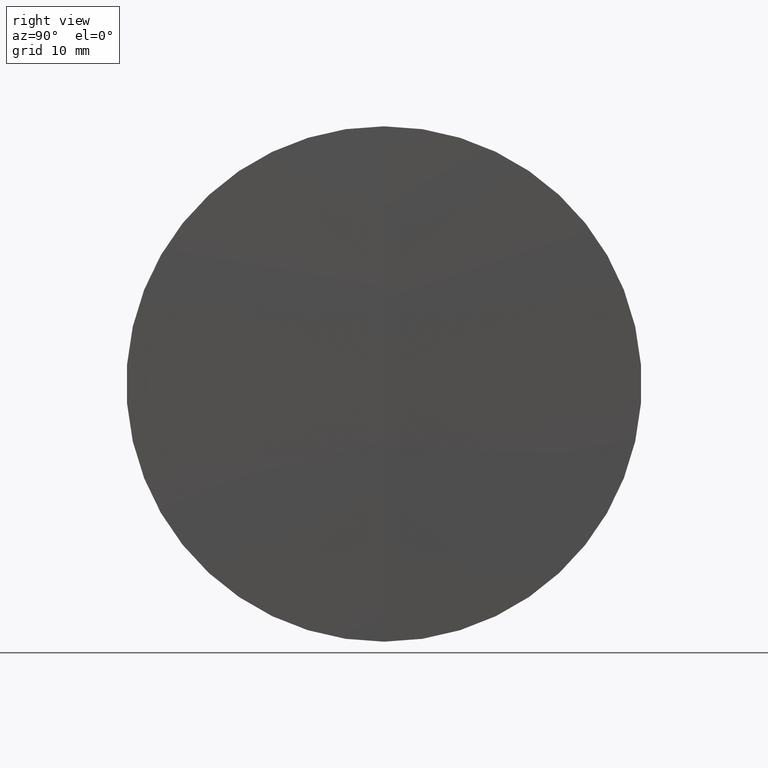
[diagram: clean part render]
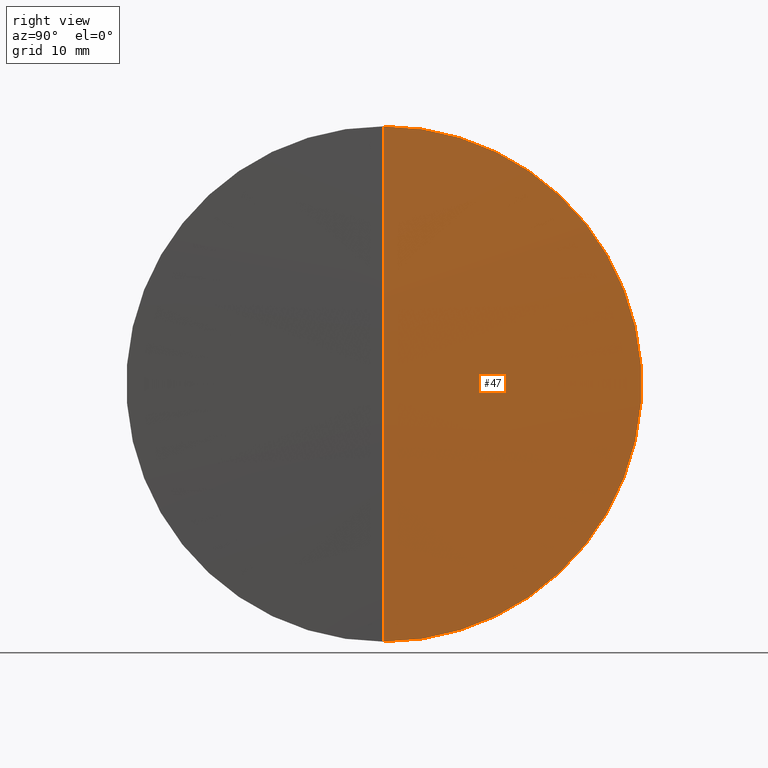
[diagram: same view with one face highlighted and labeled with its STEP entity id]
A machine part, right view. The second image highlights one B-rep face of the part: STEP entity #47.
In plain terms, the highlighted spherical surface has radius 1132.4 mm.
Its self-contained STEP definition (entity closure, byte-faithful):
#1 = DIRECTION ( 'NONE',  ( 0.0000000000000000000, 0.0000000000000000000, 1.000000000000000000 ) ) ;
#8 = CARTESIAN_POINT ( 'NONE',  ( 719.7805592743228500, 0.0000000000000000000, 6.933950176772312400E-014 ) ) ;
#13 = VERTEX_POINT ( 'NONE', #8 ) ;
#32 = AXIS2_PLACEMENT_3D ( 'NONE', #199, #325, #1 ) ;
#33 = DIRECTION ( 'NONE',  ( 0.0000000000000000000, -1.000000000000000000, 0.0000000000000000000 ) ) ;
#47 = ADVANCED_FACE ( 'NONE', ( #132 ), #145, .T. ) ;
#62 = ORIENTED_EDGE ( 'NONE', *, *, #194, .F. ) ;
#67 = CARTESIAN_POINT ( 'NONE',  ( 719.4956594297797200, 0.0000000000000000000, 0.0000000000000000000 ) ) ;
#75 = VERTEX_POINT ( 'NONE', #302 ) ;
#79 = VERTEX_POINT ( 'NONE', #218 ) ;
#81 = AXIS2_PLACEMENT_3D ( 'NONE', #94, #33, #228 ) ;
#89 = DIRECTION ( 'NONE',  ( 0.0000000000000000000, 0.0000000000000000000, 1.000000000000000000 ) ) ;
#94 = CARTESIAN_POINT ( 'NONE',  ( -412.6194407256770100, 0.0000000000000000000, 0.0000000000000000000 ) ) ;
#95 = DIRECTION ( 'NONE',  ( -1.000000000000000000, -0.0000000000000000000, -0.0000000000000000000 ) ) ;
#132 = FACE_OUTER_BOUND ( 'NONE', #268, .T. ) ;
#145 = SPHERICAL_SURFACE ( 'NONE', #32, 1132.399999999999900 ) ;
#146 = ORIENTED_EDGE ( 'NONE', *, *, #227, .T. ) ;
#171 = DIRECTION ( 'NONE',  ( -0.0000000000000000000, 1.000000000000000000, 1.224646799147353200E-016 ) ) ;
#186 = EDGE_CURVE ( 'NONE', #13, #75, #329, .T. ) ;
#194 = EDGE_CURVE ( 'NONE', #75, #79, #205, .T. ) ;
#199 = CARTESIAN_POINT ( 'NONE',  ( -412.6194407256770100, 0.0000000000000000000, 0.0000000000000000000 ) ) ;
#205 = CIRCLE ( 'NONE', #226, 25.39999999999975700 ) ;
#211 = ORIENTED_EDGE ( 'NONE', *, *, #186, .F. ) ;
#218 = CARTESIAN_POINT ( 'NONE',  ( 719.4956594297797200, 3.110602869834256700E-015, -25.39999999999975700 ) ) ;
#226 = AXIS2_PLACEMENT_3D ( 'NONE', #67, #95, #89 ) ;
#227 = EDGE_CURVE ( 'NONE', #13, #79, #340, .T. ) ;
#228 = DIRECTION ( 'NONE',  ( 0.0000000000000000000, 0.0000000000000000000, -1.000000000000000000 ) ) ;
#241 = CARTESIAN_POINT ( 'NONE',  ( -412.6194407256770100, 0.0000000000000000000, 0.0000000000000000000 ) ) ;
#268 = EDGE_LOOP ( 'NONE', ( #211, #146, #62 ) ) ;
#294 = AXIS2_PLACEMENT_3D ( 'NONE', #241, #171, #301 ) ;
#301 = DIRECTION ( 'NONE',  ( 0.0000000000000000000, -1.224646799147353200E-016, 1.000000000000000000 ) ) ;
#302 = CARTESIAN_POINT ( 'NONE',  ( 719.4956594297797200, 0.0000000000000000000, 25.39999999999975700 ) ) ;
#325 = DIRECTION ( 'NONE',  ( 0.0000000000000000000, 1.000000000000000000, 0.0000000000000000000 ) ) ;
#329 = CIRCLE ( 'NONE', #81, 1132.399999999999900 ) ;
#340 = CIRCLE ( 'NONE', #294, 1132.399999999999900 ) ;